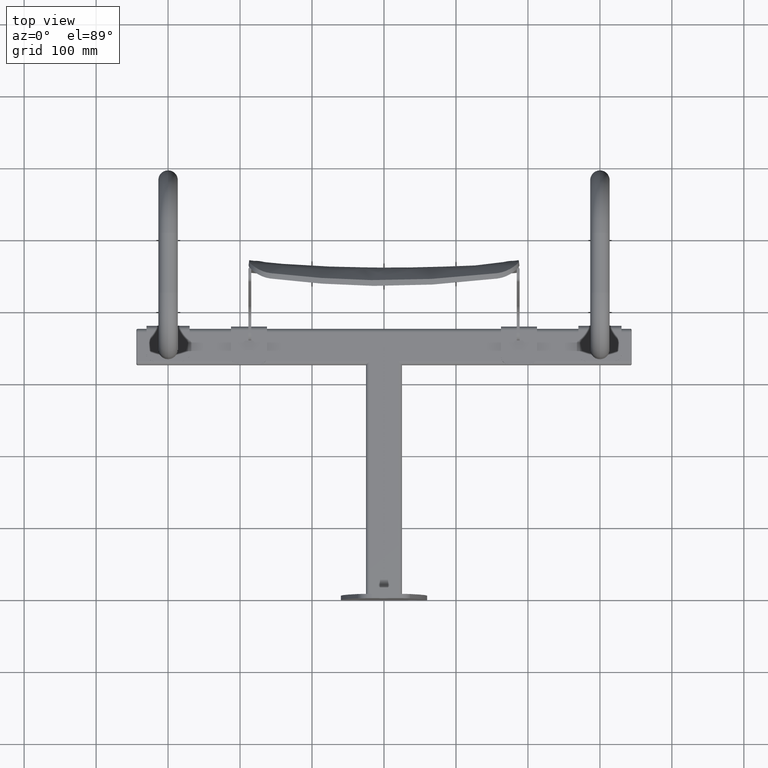
[diagram: clean part render]
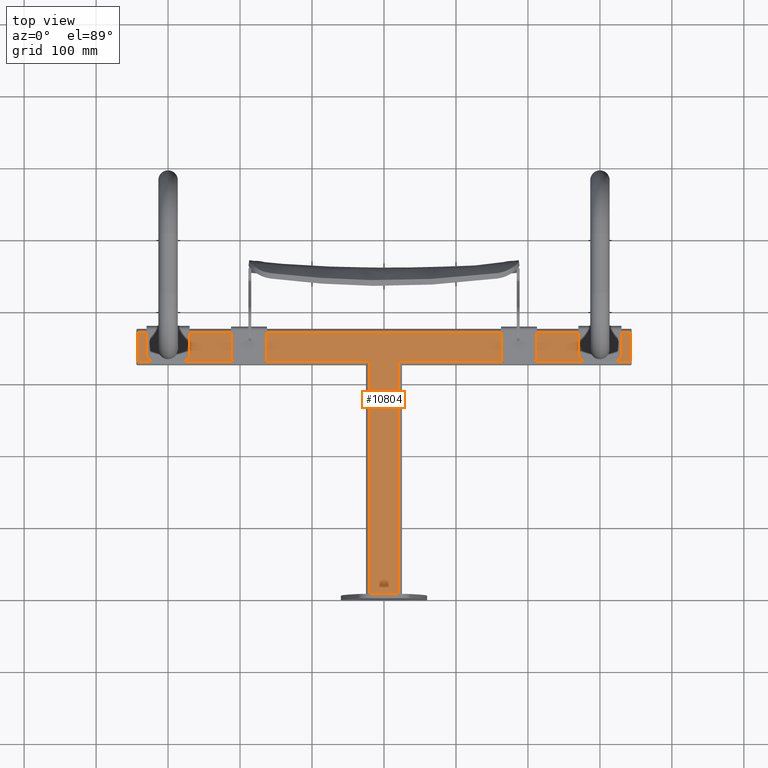
[diagram: same view with one face highlighted and labeled with its STEP entity id]
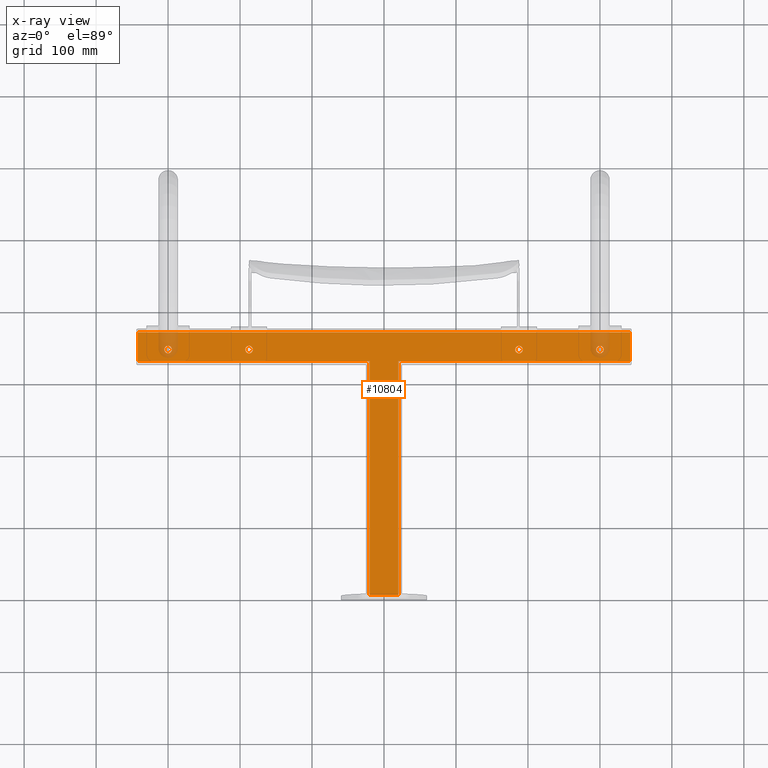
[diagram: x-ray of the same camera — body ghosted, the highlighted face saturated]
A machine part, top view. The second image highlights one B-rep face of the part: STEP entity #10804.
The next image is the same camera in x-ray: the body ghosted, the highlighted face saturated — about 4% of this face is hidden behind the body in this view.
In plain terms, the highlighted planar face has unit normal (0, 0, -1).
Its self-contained STEP definition (entity closure, byte-faithful):
#982 = LINE ( 'NONE', #13554, #984 ) ;
#984 = VECTOR ( 'NONE', #13555, 1000.000000000000000 ) ;
#1001 = LINE ( 'NONE', #5870, #1009 ) ;
#1007 = CIRCLE ( 'NONE', #4290, 5.250000000000004400 ) ;
#1008 = LINE ( 'NONE', #5874, #1011 ) ;
#1009 = VECTOR ( 'NONE', #5864, 1000.000000000000000 ) ;
#1010 = LINE ( 'NONE', #5876, #1013 ) ;
#1011 = VECTOR ( 'NONE', #5875, 1000.000000000000000 ) ;
#1012 = LINE ( 'NONE', #5878, #1015 ) ;
#1013 = VECTOR ( 'NONE', #5877, 1000.000000000000000 ) ;
#1014 = CIRCLE ( 'NONE', #4289, 5.250000000000032000 ) ;
#1015 = VECTOR ( 'NONE', #5879, 1000.000000000000000 ) ;
#1037 = CIRCLE ( 'NONE', #12428, 5.250000000000004400 ) ;
#1038 = CIRCLE ( 'NONE', #12429, 5.250000000000032000 ) ;
#1039 = LINE ( 'NONE', #5925, #1042 ) ;
#1041 = LINE ( 'NONE', #5929, #1044 ) ;
#1042 = VECTOR ( 'NONE', #5915, 1000.000000000000000 ) ;
#1043 = LINE ( 'NONE', #11803, #1046 ) ;
#1044 = VECTOR ( 'NONE', #13559, 1000.000000000000000 ) ;
#1046 = VECTOR ( 'NONE', #11804, 1000.000000000000000 ) ;
#1095 = CIRCLE ( 'NONE', #12461, 5.250000000000032000 ) ;
#1152 = CIRCLE ( 'NONE', #12467, 5.250000000000004400 ) ;
#1163 = CIRCLE ( 'NONE', #12472, 5.250000000000004400 ) ;
#1170 = CIRCLE ( 'NONE', #12473, 5.250000000000032000 ) ;
#1200 = EDGE_LOOP ( 'NONE', ( #11509, #11508 ) ) ;
#1213 = EDGE_LOOP ( 'NONE', ( #11497, #11496 ) ) ;
#1490 = CARTESIAN_POINT ( 'NONE',  ( 0.0000000000000000000, 0.0000000000000000000, 25.00000000000000000 ) ) ;
#1491 = DIRECTION ( 'NONE',  ( 0.0000000000000000000, 0.0000000000000000000, -1.000000000000000000 ) ) ;
#1492 = DIRECTION ( 'NONE',  ( -1.000000000000000000, 0.0000000000000000000, 0.0000000000000000000 ) ) ;
#4289 = AXIS2_PLACEMENT_3D ( 'NONE', #5881, #5882, #5883 ) ;
#4290 = AXIS2_PLACEMENT_3D ( 'NONE', #5885, #5886, #5887 ) ;
#4521 = EDGE_LOOP ( 'NONE', ( #11505, #11504, #11503, #11502, #11501, #11500, #11499, #11498 ) ) ;
#4541 = EDGE_LOOP ( 'NONE', ( #11495, #11494 ) ) ;
#4555 = EDGE_LOOP ( 'NONE', ( #11507, #11506 ) ) ;
#4629 = CARTESIAN_POINT ( 'NONE',  ( 305.2500000000000000, 347.0000000000000600, 25.00000000000000000 ) ) ;
#4630 = CARTESIAN_POINT ( 'NONE',  ( -182.2500000000000000, 347.0000000000000000, 25.00000000000000000 ) ) ;
#4634 = CARTESIAN_POINT ( 'NONE',  ( 294.7499999999999400, 347.0000000000000600, 25.00000000000000000 ) ) ;
#4677 = CARTESIAN_POINT ( 'NONE',  ( -192.7500000000000000, 347.0000000000000000, 25.00000000000000000 ) ) ;
#4678 = CARTESIAN_POINT ( 'NONE',  ( 182.2500000000000000, 347.0000000000000600, 25.00000000000000000 ) ) ;
#4723 = PLANE ( 'NONE',  #12488 ) ;
#4773 = CARTESIAN_POINT ( 'NONE',  ( 192.7500000000000000, 347.0000000000000600, 25.00000000000000000 ) ) ;
#4775 = CARTESIAN_POINT ( 'NONE',  ( -305.2500000000000000, 347.0000000000000000, 25.00000000000000000 ) ) ;
#4777 = CARTESIAN_POINT ( 'NONE',  ( -294.7499999999999400, 347.0000000000000000, 25.00000000000000000 ) ) ;
#5521 = VERTEX_POINT ( 'NONE', #4773 ) ;
#5523 = VERTEX_POINT ( 'NONE', #4775 ) ;
#5525 = VERTEX_POINT ( 'NONE', #4777 ) ;
#5552 = VERTEX_POINT ( 'NONE', #13419 ) ;
#5637 = VERTEX_POINT ( 'NONE', #13453 ) ;
#5639 = VERTEX_POINT ( 'NONE', #13455 ) ;
#5640 = VERTEX_POINT ( 'NONE', #13456 ) ;
#5645 = VERTEX_POINT ( 'NONE', #13461 ) ;
#5649 = VERTEX_POINT ( 'NONE', #13465 ) ;
#5664 = VERTEX_POINT ( 'NONE', #13480 ) ;
#5718 = EDGE_CURVE ( 'NONE', #5552, #5640, #982, .T. ) ;
#5736 = EDGE_CURVE ( 'NONE', #16012, #5552, #1001, .T. ) ;
#5737 = EDGE_CURVE ( 'NONE', #5645, #16012, #1008, .T. ) ;
#5738 = EDGE_CURVE ( 'NONE', #5664, #5645, #1010, .T. ) ;
#5739 = EDGE_CURVE ( 'NONE', #5639, #5664, #1012, .T. ) ;
#5740 = EDGE_CURVE ( 'NONE', #5525, #5523, #1014, .T. ) ;
#5741 = EDGE_CURVE ( 'NONE', #9836, #10570, #1007, .T. ) ;
#5756 = EDGE_CURVE ( 'NONE', #5521, #10571, #1037, .T. ) ;
#5757 = EDGE_CURVE ( 'NONE', #9835, #9840, #1038, .T. ) ;
#5758 = EDGE_CURVE ( 'NONE', #5649, #5639, #1039, .T. ) ;
#5759 = EDGE_CURVE ( 'NONE', #5637, #5649, #1041, .T. ) ;
#5760 = EDGE_CURVE ( 'NONE', #5640, #5637, #1043, .T. ) ;
#5864 = DIRECTION ( 'NONE',  ( 0.0000000000000000000, -1.000000000000000000, 0.0000000000000000000 ) ) ;
#5870 = CARTESIAN_POINT ( 'NONE',  ( -19.99999999999995700, 0.0000000000000000000, 25.00000000000000000 ) ) ;
#5874 = CARTESIAN_POINT ( 'NONE',  ( 0.0000000000000000000, 331.0000000000000000, 25.00000000000000000 ) ) ;
#5875 = DIRECTION ( 'NONE',  ( 1.000000000000000000, 0.0000000000000000000, 0.0000000000000000000 ) ) ;
#5876 = CARTESIAN_POINT ( 'NONE',  ( -342.0000000000000600, 0.0000000000000000000, 25.00000000000000000 ) ) ;
#5877 = DIRECTION ( 'NONE',  ( 0.0000000000000000000, -1.000000000000000000, 0.0000000000000000000 ) ) ;
#5878 = CARTESIAN_POINT ( 'NONE',  ( -2.993406556220444800E-014, 371.0000000000000600, 25.00000000000000000 ) ) ;
#5879 = DIRECTION ( 'NONE',  ( -1.000000000000000000, -8.068481283613057000E-017, 0.0000000000000000000 ) ) ;
#5881 = CARTESIAN_POINT ( 'NONE',  ( -300.0000000000000000, 347.0000000000000000, 25.00000000000000000 ) ) ;
#5882 = DIRECTION ( 'NONE',  ( 0.0000000000000000000, 0.0000000000000000000, 1.000000000000000000 ) ) ;
#5883 = DIRECTION ( 'NONE',  ( 1.000000000000000000, 0.0000000000000000000, 0.0000000000000000000 ) ) ;
#5885 = CARTESIAN_POINT ( 'NONE',  ( -187.5000000000000000, 347.0000000000000000, 25.00000000000000000 ) ) ;
#5886 = DIRECTION ( 'NONE',  ( 0.0000000000000000000, 0.0000000000000000000, 1.000000000000000000 ) ) ;
#5887 = DIRECTION ( 'NONE',  ( 1.000000000000000000, 0.0000000000000000000, 0.0000000000000000000 ) ) ;
#5915 = DIRECTION ( 'NONE',  ( -3.330669073875474400E-015, 1.000000000000000000, 0.0000000000000000000 ) ) ;
#5922 = CARTESIAN_POINT ( 'NONE',  ( 187.5000000000000000, 347.0000000000000600, 25.00000000000000000 ) ) ;
#5923 = DIRECTION ( 'NONE',  ( 0.0000000000000000000, 0.0000000000000000000, 1.000000000000000000 ) ) ;
#5924 = DIRECTION ( 'NONE',  ( -1.000000000000000000, 0.0000000000000000000, 0.0000000000000000000 ) ) ;
#5925 = CARTESIAN_POINT ( 'NONE',  ( 342.0000000000011900, 1.139088823265416100E-012, 25.00000000000000000 ) ) ;
#5926 = CARTESIAN_POINT ( 'NONE',  ( 300.0000000000000000, 347.0000000000000600, 25.00000000000000000 ) ) ;
#5927 = DIRECTION ( 'NONE',  ( 0.0000000000000000000, 0.0000000000000000000, 1.000000000000000000 ) ) ;
#5928 = DIRECTION ( 'NONE',  ( -1.000000000000000000, 0.0000000000000000000, 0.0000000000000000000 ) ) ;
#5929 = CARTESIAN_POINT ( 'NONE',  ( -1.151986900159645000E-013, 331.0000000000000000, 25.00000000000000000 ) ) ;
#5935 = EDGE_CURVE ( 'NONE', #5523, #5525, #1095, .T. ) ;
#5948 = EDGE_CURVE ( 'NONE', #10571, #5521, #1152, .T. ) ;
#5956 = EDGE_CURVE ( 'NONE', #10570, #9836, #1163, .T. ) ;
#5960 = EDGE_CURVE ( 'NONE', #9840, #9835, #1170, .T. ) ;
#9835 = VERTEX_POINT ( 'NONE', #4629 ) ;
#9836 = VERTEX_POINT ( 'NONE', #4630 ) ;
#9840 = VERTEX_POINT ( 'NONE', #4634 ) ;
#9846 = FACE_BOUND ( 'NONE', #1213, .T. ) ;
#9848 = FACE_OUTER_BOUND ( 'NONE', #4521, .T. ) ;
#9861 = FACE_BOUND ( 'NONE', #1200, .T. ) ;
#9863 = FACE_BOUND ( 'NONE', #4541, .T. ) ;
#9865 = FACE_BOUND ( 'NONE', #4555, .T. ) ;
#10570 = VERTEX_POINT ( 'NONE', #4677 ) ;
#10571 = VERTEX_POINT ( 'NONE', #4678 ) ;
#10684 = CARTESIAN_POINT ( 'NONE',  ( 187.5000000000000000, 347.0000000000000600, 25.00000000000000000 ) ) ;
#10685 = DIRECTION ( 'NONE',  ( 0.0000000000000000000, 0.0000000000000000000, 1.000000000000000000 ) ) ;
#10686 = DIRECTION ( 'NONE',  ( -1.000000000000000000, 0.0000000000000000000, 0.0000000000000000000 ) ) ;
#10708 = CARTESIAN_POINT ( 'NONE',  ( -187.5000000000000000, 347.0000000000000000, 25.00000000000000000 ) ) ;
#10709 = DIRECTION ( 'NONE',  ( 0.0000000000000000000, 0.0000000000000000000, 1.000000000000000000 ) ) ;
#10710 = DIRECTION ( 'NONE',  ( 1.000000000000000000, 0.0000000000000000000, 0.0000000000000000000 ) ) ;
#10714 = CARTESIAN_POINT ( 'NONE',  ( 300.0000000000000000, 347.0000000000000600, 25.00000000000000000 ) ) ;
#10715 = DIRECTION ( 'NONE',  ( 0.0000000000000000000, 0.0000000000000000000, 1.000000000000000000 ) ) ;
#10716 = DIRECTION ( 'NONE',  ( -1.000000000000000000, 0.0000000000000000000, 0.0000000000000000000 ) ) ;
#10804 = ADVANCED_FACE ( 'NONE', ( #9861, #9865, #9848, #9846, #9863 ), #4723, .F. ) ;
#11494 = ORIENTED_EDGE ( 'NONE', *, *, #5756, .F. ) ;
#11495 = ORIENTED_EDGE ( 'NONE', *, *, #5948, .F. ) ;
#11496 = ORIENTED_EDGE ( 'NONE', *, *, #5757, .F. ) ;
#11497 = ORIENTED_EDGE ( 'NONE', *, *, #5960, .F. ) ;
#11498 = ORIENTED_EDGE ( 'NONE', *, *, #5758, .T. ) ;
#11499 = ORIENTED_EDGE ( 'NONE', *, *, #5759, .T. ) ;
#11500 = ORIENTED_EDGE ( 'NONE', *, *, #5760, .T. ) ;
#11501 = ORIENTED_EDGE ( 'NONE', *, *, #5718, .T. ) ;
#11502 = ORIENTED_EDGE ( 'NONE', *, *, #5736, .T. ) ;
#11503 = ORIENTED_EDGE ( 'NONE', *, *, #5737, .T. ) ;
#11504 = ORIENTED_EDGE ( 'NONE', *, *, #5738, .T. ) ;
#11505 = ORIENTED_EDGE ( 'NONE', *, *, #5739, .T. ) ;
#11506 = ORIENTED_EDGE ( 'NONE', *, *, #5740, .F. ) ;
#11507 = ORIENTED_EDGE ( 'NONE', *, *, #5935, .F. ) ;
#11508 = ORIENTED_EDGE ( 'NONE', *, *, #5741, .F. ) ;
#11509 = ORIENTED_EDGE ( 'NONE', *, *, #5956, .F. ) ;
#11787 = CARTESIAN_POINT ( 'NONE',  ( -300.0000000000000000, 347.0000000000000000, 25.00000000000000000 ) ) ;
#11788 = DIRECTION ( 'NONE',  ( 0.0000000000000000000, 0.0000000000000000000, 1.000000000000000000 ) ) ;
#11789 = DIRECTION ( 'NONE',  ( 1.000000000000000000, 0.0000000000000000000, 0.0000000000000000000 ) ) ;
#11803 = CARTESIAN_POINT ( 'NONE',  ( 20.00000000000004300, 4.770489558936229800E-015, 25.00000000000000000 ) ) ;
#11804 = DIRECTION ( 'NONE',  ( -2.385244779468109800E-016, 1.000000000000000000, 0.0000000000000000000 ) ) ;
#12428 = AXIS2_PLACEMENT_3D ( 'NONE', #5922, #5923, #5924 ) ;
#12429 = AXIS2_PLACEMENT_3D ( 'NONE', #5926, #5927, #5928 ) ;
#12461 = AXIS2_PLACEMENT_3D ( 'NONE', #11787, #11788, #11789 ) ;
#12467 = AXIS2_PLACEMENT_3D ( 'NONE', #10684, #10685, #10686 ) ;
#12472 = AXIS2_PLACEMENT_3D ( 'NONE', #10708, #10709, #10710 ) ;
#12473 = AXIS2_PLACEMENT_3D ( 'NONE', #10714, #10715, #10716 ) ;
#12488 = AXIS2_PLACEMENT_3D ( 'NONE', #1490, #1491, #1492 ) ;
#13419 = CARTESIAN_POINT ( 'NONE',  ( -19.99999999999995400, 6.000000000000006200, 25.00000000000000000 ) ) ;
#13453 = CARTESIAN_POINT ( 'NONE',  ( 19.99999999999996400, 331.0000000000000000, 25.00000000000000000 ) ) ;
#13455 = CARTESIAN_POINT ( 'NONE',  ( 341.9999999999999400, 371.0000000000000600, 25.00000000000000000 ) ) ;
#13456 = CARTESIAN_POINT ( 'NONE',  ( 20.00000000000004300, 6.000000000000010700, 25.00000000000000000 ) ) ;
#13461 = CARTESIAN_POINT ( 'NONE',  ( -342.0000000000000600, 331.0000000000000000, 25.00000000000000000 ) ) ;
#13465 = CARTESIAN_POINT ( 'NONE',  ( 342.0000000000000600, 331.0000000000001100, 25.00000000000000000 ) ) ;
#13480 = CARTESIAN_POINT ( 'NONE',  ( -342.0000000000000600, 371.0000000000000600, 25.00000000000000000 ) ) ;
#13554 = CARTESIAN_POINT ( 'NONE',  ( 25.00000000000004300, 6.000000000000011500, 25.00000000000000000 ) ) ;
#13555 = DIRECTION ( 'NONE',  ( 1.000000000000000000, 1.214306433183765000E-016, -0.0000000000000000000 ) ) ;
#13559 = DIRECTION ( 'NONE',  ( 1.000000000000000000, 3.480322961207386200E-016, 0.0000000000000000000 ) ) ;
#14642 = CARTESIAN_POINT ( 'NONE',  ( -19.99999999999995700, 331.0000000000000000, 25.00000000000000000 ) ) ;
#16012 = VERTEX_POINT ( 'NONE', #14642 ) ;